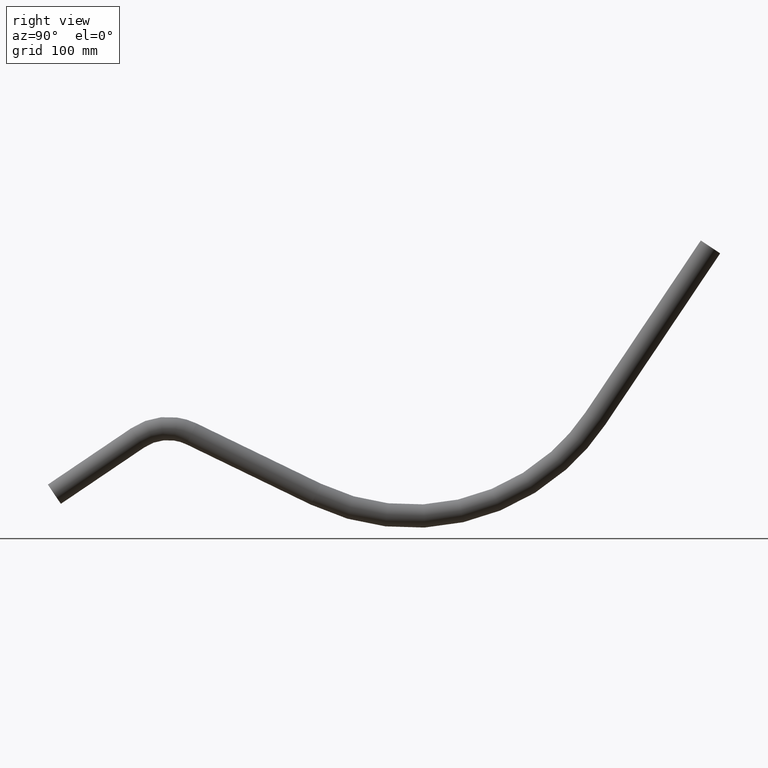
[diagram: clean part render]
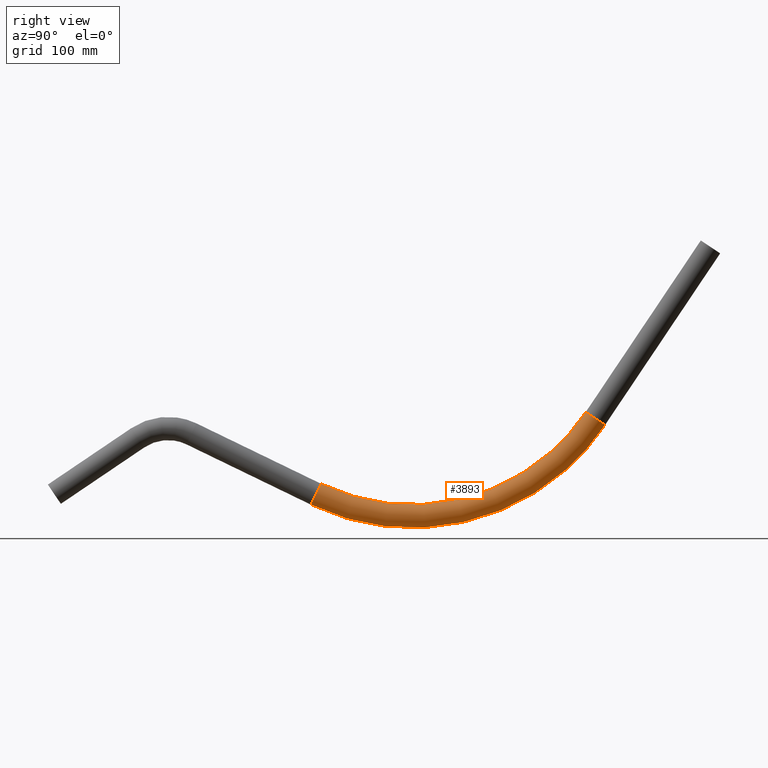
[diagram: same view with one face highlighted and labeled with its STEP entity id]
A machine part, right view. The second image highlights one B-rep face of the part: STEP entity #3893.
In plain terms, the highlighted toroidal blend (fillet) surface has major radius 320 mm and minor (blend) radius 16.85 mm.
Its self-contained STEP definition (entity closure, byte-faithful):
#263 = DIRECTION ( 'NONE',  ( 0.000000000000000000, 0.8999422307662464648, -0.4360091527519487364 ) ) ;
#1421 = EDGE_LOOP ( 'NONE', ( #2451 ) ) ;
#1894 = FACE_OUTER_BOUND ( 'NONE', #11239, .T. ) ;
#1915 = EDGE_CURVE ( 'NONE', #5423, #5423, #2417, .T. ) ;
#2397 = ORIENTED_EDGE ( 'NONE', *, *, #1915, .F. ) ;
#2417 = CIRCLE ( 'NONE', #12963, 16.85000000000004761 ) ;
#2451 = ORIENTED_EDGE ( 'NONE', *, *, #3993, .T. ) ;
#3209 = DIRECTION ( 'NONE',  ( 0.000000000000000000, 0.5570136925899753511, 0.8305033090044136035 ) ) ;
#3213 = CARTESIAN_POINT ( 'NONE',  ( 0.000000000000000000, 519.0098154945318356, 287.9815138451980374 ) ) ;
#3893 = ADVANCED_FACE ( 'NONE', ( #1894, #10917 ), #14052, .T. ) ;
#3993 = EDGE_CURVE ( 'NONE', #10973, #10973, #13499, .T. ) ;
#4338 = DIRECTION ( 'NONE',  ( 1.000000000000000000, 0.000000000000000000, -0.000000000000000000 ) ) ;
#5423 = VERTEX_POINT ( 'NONE', #5760 ) ;
#5760 = CARTESIAN_POINT ( 'NONE',  ( 0.000000000000000000, 770.7768936192194360, 119.1228129365470068 ) ) ;
#6762 = CARTESIAN_POINT ( 'NONE',  ( 0.000000000000000000, 386.8336408377791713, 15.16402658841126616 ) ) ;
#7044 = DIRECTION ( 'NONE',  ( 0.000000000000000000, 0.4360091527519476817, 0.8999422307662467979 ) ) ;
#7949 = AXIS2_PLACEMENT_3D ( 'NONE', #3213, #4338, #12083 ) ;
#8103 = CARTESIAN_POINT ( 'NONE',  ( 0.000000000000000000, 379.4868866139088368, 0.000000000000000000 ) ) ;
#8688 = AXIS2_PLACEMENT_3D ( 'NONE', #8103, #263, #7044 ) ;
#10917 = FACE_OUTER_BOUND ( 'NONE', #1421, .T. ) ;
#10973 = VERTEX_POINT ( 'NONE', #6762 ) ;
#11239 = EDGE_LOOP ( 'NONE', ( #2397 ) ) ;
#11992 = CARTESIAN_POINT ( 'NONE',  ( 0.000000000000000000, 784.7708743759438903, 109.7371322164059109 ) ) ;
#12083 = DIRECTION ( 'NONE',  ( 0.000000000000000000, 0.000000000000000000, -1.000000000000000000 ) ) ;
#12963 = AXIS2_PLACEMENT_3D ( 'NONE', #11992, #3209, #13116 ) ;
#13116 = DIRECTION ( 'NONE',  ( 0.000000000000000000, -0.8305033090044143806, 0.5570136925899742408 ) ) ;
#13499 = CIRCLE ( 'NONE', #8688, 16.85000000000000853 ) ;
#14052 = TOROIDAL_SURFACE ( 'NONE', #7949, 319.9999999999990337, 16.85000000000001563 ) ;